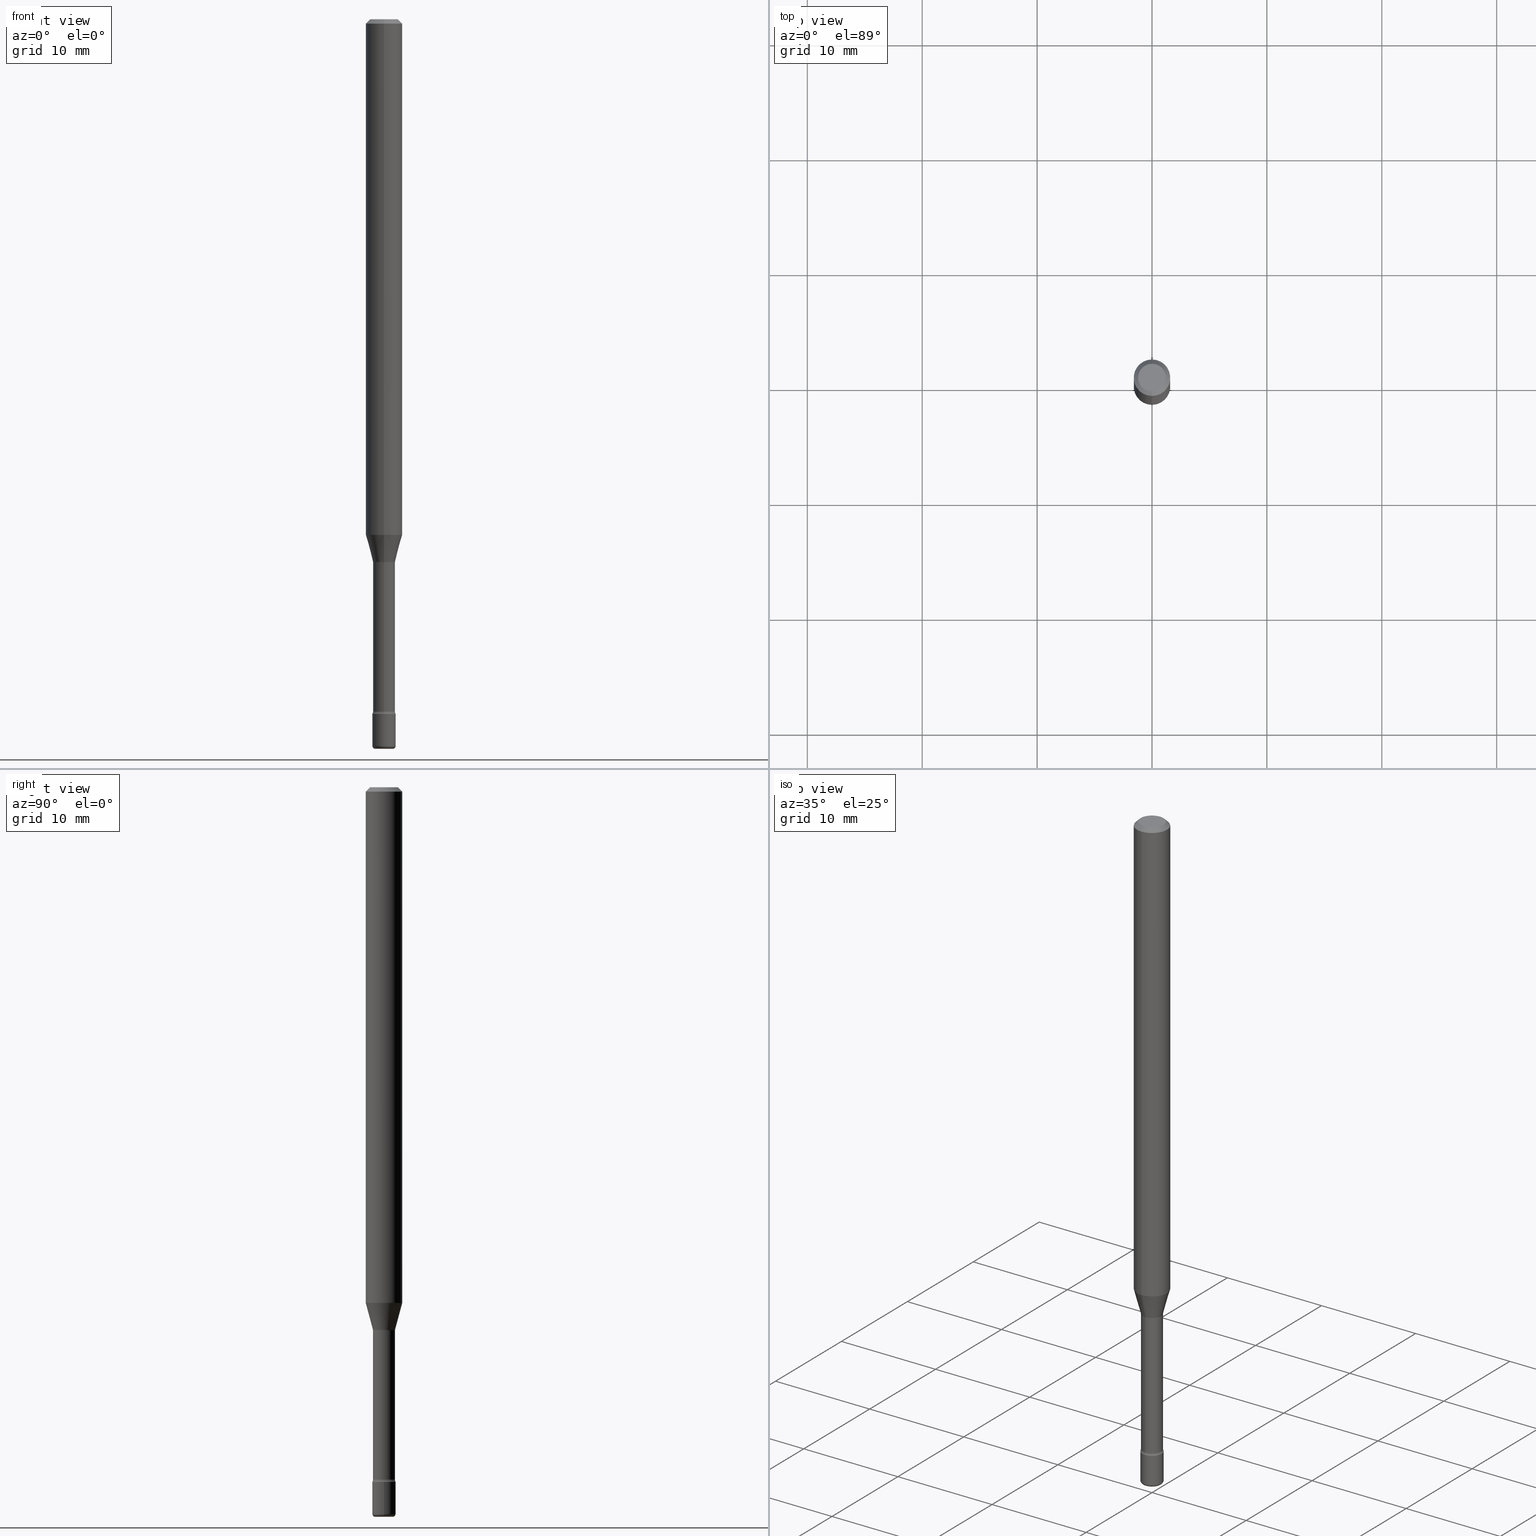
[diagram: canonical four-view strip — front | top / right | iso, engineering-drawing reading convention]
A machine part, canonical four-view strip (front | top / right | iso — engineering-drawing reading convention). The complete STEP part file that produces these views, byte-faithful:
ISO-10303-21;
HEADER;
FILE_DESCRIPTION (( 'STEP AP203' ),
    '1' );
FILE_NAME ('08843.STEP',
    '2024-03-06T20:05:14',
    ( '' ),
    ( '' ),
    'SwSTEP 2.0',
    'SolidWorks 2023',
    '' );
FILE_SCHEMA (( 'CONFIG_CONTROL_DESIGN' ));
ENDSEC;

DATA;
#1 = ORIENTED_EDGE ( 'NONE', *, *, #415, .F. ) ;
#2 = DIRECTION ( 'NONE',  ( -2.445371158952634038E-29, 3.491621175237824120E-15, 1.000000000000000000 ) ) ;
#3 = EDGE_CURVE ( 'NONE', #87, #452, #150, .T. ) ;
#4 = AXIS2_PLACEMENT_3D ( 'NONE', #69, #107, #285 ) ;
#5 = ORIENTED_EDGE ( 'NONE', *, *, #225, .T. ) ;
#6 = AXIS2_PLACEMENT_3D ( 'NONE', #503, #110, #382 ) ;
#7 = CARTESIAN_POINT ( 'NONE',  ( -1.169113584055446105E-44, 1.669184350826100908E-30, 4.780733988912460139E-16 ) ) ;
#8 = CARTESIAN_POINT ( 'NONE',  ( 5.820215758720625190E-29, -8.309725586446686731E-15, -2.379999999999999893 ) ) ;
#9 = DIRECTION ( 'NONE',  ( -2.445468806185136877E-29, 3.491481338843145188E-15, 1.000000000000000000 ) ) ;
#10 = DIRECTION ( 'NONE',  ( -2.445468806185136597E-29, 3.491481338843145583E-15, 1.000000000000000000 ) ) ;
#11 = CIRCLE ( 'NONE', #473, 0.03760000000000000842 ) ;
#12 = DIRECTION ( 'NONE',  ( -2.445468806185136597E-29, 3.491481338843145583E-15, 1.000000000000000000 ) ) ;
#13 = SECURITY_CLASSIFICATION ( '', '', #249 ) ;
#14 = VERTEX_POINT ( 'NONE', #443 ) ;
#15 = CARTESIAN_POINT ( 'NONE',  ( -1.169113584055446105E-44, 1.669184350826100908E-30, 4.780733988912460139E-16 ) ) ;
#16 = ADVANCED_FACE ( 'NONE', ( #483 ), #350, .F. ) ;
#17 = ORIENTED_EDGE ( 'NONE', *, *, #32, .F. ) ;
#18 = CARTESIAN_POINT ( 'NONE',  ( 5.800080981349790489E-29, -8.281640804682186145E-15, -2.371861204020250025 ) ) ;
#19 = AXIS2_PLACEMENT_3D ( 'NONE', #54, #223, #530 ) ;
#20 = TOROIDAL_SURFACE ( 'NONE', #436, 0.02999999999999999889, 0.01000000000000008347 ) ;
#21 = AXIS2_PLACEMENT_3D ( 'NONE', #385, #386, #243 ) ;
#22 = PLANE ( 'NONE',  #426 ) ;
#23 = FACE_OUTER_BOUND ( 'NONE', #162, .T. ) ;
#24 = FACE_OUTER_BOUND ( 'NONE', #343, .T. ) ;
#25 = EDGE_CURVE ( 'NONE', #493, #86, #472, .T. ) ;
#26 = DIRECTION ( 'NONE',  ( 1.000000000000000000, -6.982962677686236734E-15, 0.000000000000000000 ) ) ;
#27 = VERTEX_POINT ( 'NONE', #58 ) ;
#28 = EDGE_CURVE ( 'NONE', #452, #87, #412, .T. ) ;
#29 = CIRCLE ( 'NONE', #304, 0.02999999999999999889 ) ;
#30 = PERSON_AND_ORGANIZATION ( #515, #340 ) ;
#31 = EDGE_LOOP ( 'NONE', ( #370, #232, #257, #569 ) ) ;
#32 = EDGE_CURVE ( 'NONE', #123, #86, #319, .T. ) ;
#33 = LENGTH_MEASURE_WITH_UNIT ( LENGTH_MEASURE( 0.02539999999999999897 ), #334 );
#34 = ORIENTED_EDGE ( 'NONE', *, *, #331, .F. ) ;
#35 = PERSON_AND_ORGANIZATION ( #515, #340 ) ;
#36 = ORIENTED_EDGE ( 'NONE', *, *, #480, .T. ) ;
#37 = CARTESIAN_POINT ( 'NONE',  ( -4.364351673553912750E-16, -0.06250000000000005551, -0.01499999999999981036 ) ) ;
#38 = CC_DESIGN_DATE_AND_TIME_ASSIGNMENT ( #89, #535, ( #13 ) ) ;
#39 = DESIGN_CONTEXT ( 'detailed design', #190, 'design' ) ;
#40 = CALENDAR_DATE ( 2024, 6, 3 ) ;
#41 = AXIS2_PLACEMENT_3D ( 'NONE', #495, #149, #369 ) ;
#42 = LOCAL_TIME ( 15, 5, 14.00000000000000000, #171 ) ;
#43 = ORIENTED_EDGE ( 'NONE', *, *, #474, .F. ) ;
#44 = ADVANCED_FACE ( 'NONE', ( #453 ), #188, .T. ) ;
#45 = CALENDAR_DATE ( 2024, 6, 3 ) ;
#46 = ORIENTED_EDGE ( 'NONE', *, *, #25, .T. ) ;
#47 = CALENDAR_DATE ( 2024, 6, 3 ) ;
#48 = ORIENTED_EDGE ( 'NONE', *, *, #384, .T. ) ;
#49 = DIRECTION ( 'NONE',  ( -1.000000000000000000, 6.982962677686265922E-15, -4.883557194083112340E-29 ) ) ;
#50 = AXIS2_PLACEMENT_3D ( 'NONE', #153, #461, #330 ) ;
#51 = AXIS2_PLACEMENT_3D ( 'NONE', #67, #326, #420 ) ;
#52 = PRODUCT ( '08843', '08843', '', ( #159 ) ) ;
#53 = APPROVAL_STATUS ( 'not_yet_approved' ) ;
#54 = CARTESIAN_POINT ( 'NONE',  ( 4.553219443960964936E-29, -6.501310595667589929E-15, -1.861974787463811065 ) ) ;
#55 = CARTESIAN_POINT ( 'NONE',  ( 0.02999999999999999889, -8.938192227438451682E-15, -2.500000000000000000 ) ) ;
#56 = DIRECTION ( 'NONE',  ( 1.000000000000000000, -6.982962677686259611E-15, 0.000000000000000000 ) ) ;
#57 = DIRECTION ( 'NONE',  ( -2.445371158952634318E-29, 3.491621175237824120E-15, 1.000000000000000000 ) ) ;
#58 = CARTESIAN_POINT ( 'NONE',  ( 3.574424759935243533E-16, 0.03811111260565749198, -1.858092501787273143 ) ) ;
#59 = DIRECTION ( 'NONE',  ( -6.982962677686265133E-15, -1.000000000000000000, 3.491621175237824120E-15 ) ) ;
#60 = DIRECTION ( 'NONE',  ( -2.445468806185136597E-29, 3.491481338843145583E-15, 1.000000000000000000 ) ) ;
#61 = AXIS2_PLACEMENT_3D ( 'NONE', #404, #10, #56 ) ;
#62 = ORIENTED_EDGE ( 'NONE', *, *, #247, .F. ) ;
#63 = CIRCLE ( 'NONE', #185, 0.03760000000000005699 ) ;
#64 = VECTOR ( 'NONE', #296, 39.37007874015748143 ) ;
#65 = CARTESIAN_POINT ( 'NONE',  ( 4.543725814536743959E-29, -6.487755124791067453E-15, -1.858092501787273143 ) ) ;
#66 = DIRECTION ( 'NONE',  ( -2.445371158952634318E-29, 3.491621175237824120E-15, 1.000000000000000000 ) ) ;
#67 = CARTESIAN_POINT ( 'NONE',  ( 5.800312587032241644E-29, -8.281309132162736146E-15, -2.371861204020250025 ) ) ;
#68 = APPROVAL ( #53, 'UNSPECIFIED' ) ;
#69 = CARTESIAN_POINT ( 'NONE',  ( 5.819983358307269654E-29, -8.310058397066021462E-15, -2.379999999999999893 ) ) ;
#70 = ADVANCED_FACE ( 'NONE', ( #181 ), #377, .F. ) ;
#71 = FACE_OUTER_BOUND ( 'NONE', #157, .T. ) ;
#72 = VECTOR ( 'NONE', #9, 39.37007874015748143 ) ;
#73 = DIRECTION ( 'NONE',  ( 6.982962677686265922E-15, 1.000000000000000000, -3.483106191921935554E-15 ) ) ;
#74 = CARTESIAN_POINT ( 'NONE',  ( 4.543725814536743959E-29, -6.487755124791067453E-15, -1.858092501787273143 ) ) ;
#75 = ADVANCED_FACE ( 'NONE', ( #416 ), #282, .T. ) ;
#76 = VERTEX_POINT ( 'NONE', #355 ) ;
#77 = CIRCLE ( 'NONE', #50, 0.06250000000000000000 ) ;
#78 = APPROVAL_DATE_TIME ( #460, #342 ) ;
#79 = DATE_AND_TIME ( #47, #42 ) ;
#80 = PERSON_AND_ORGANIZATION ( #515, #340 ) ;
#81 = ORIENTED_EDGE ( 'NONE', *, *, #266, .F. ) ;
#82 = EDGE_LOOP ( 'NONE', ( #400, #295, #547, #178 ) ) ;
#83 = LINE ( 'NONE', #254, #118 ) ;
#84 = AXIS2_PLACEMENT_3D ( 'NONE', #488, #106, #99 ) ;
#85 = CIRCLE ( 'NONE', #458, 0.01500000000000001853 ) ;
#86 = VERTEX_POINT ( 'NONE', #312 ) ;
#87 = VERTEX_POINT ( 'NONE', #141 ) ;
#88 = CARTESIAN_POINT ( 'NONE',  ( 0.04000000000000004247, -8.973107040826881753E-15, -2.489999999999999769 ) ) ;
#89 = DATE_AND_TIME ( #175, #127 ) ;
#90 = VERTEX_POINT ( 'NONE', #406 ) ;
#91 = CARTESIAN_POINT ( 'NONE',  ( 4.440892098501060035E-16, 0.06249999999999995143, -0.01500000000000024578 ) ) ;
#92 = CIRCLE ( 'NONE', #144, 0.02999999999999999889 ) ;
#93 = LINE ( 'NONE', #267, #378 ) ;
#94 = EDGE_CURVE ( 'NONE', #551, #87, #139, .T. ) ;
#95 = EDGE_CURVE ( 'NONE', #362, #408, #522, .T. ) ;
#96 = ORIENTED_EDGE ( 'NONE', *, *, #25, .F. ) ;
#97 = DIRECTION ( 'NONE',  ( -6.982962677686265922E-15, -1.000000000000000000, 3.491621175237824120E-15 ) ) ;
#98 = CARTESIAN_POINT ( 'NONE',  ( 3.737454790098581624E-16, 0.05259999999999349224, -1.861974787463811509 ) ) ;
#99 = DIRECTION ( 'NONE',  ( -6.982962677686265922E-15, -1.000000000000000000, 3.491621175237824120E-15 ) ) ;
#100 = DIRECTION ( 'NONE',  ( 7.105427357601001859E-15, 1.000000000000000000, 0.000000000000000000 ) ) ;
#101 = CARTESIAN_POINT ( 'NONE',  ( -4.287811248607203282E-16, -0.06250000000000005551, -0.01499999999999981036 ) ) ;
#102 = DIRECTION ( 'NONE',  ( -6.982962677686265922E-15, -1.000000000000000000, 0.000000000000000000 ) ) ;
#103 = AXIS2_PLACEMENT_3D ( 'NONE', #224, #57, #459 ) ;
#104 = FACE_OUTER_BOUND ( 'NONE', #536, .T. ) ;
#105 = EDGE_LOOP ( 'NONE', ( #345, #5, #422, #315 ) ) ;
#106 = DIRECTION ( 'NONE',  ( -2.445371158952634318E-29, 3.491621175237824120E-15, 1.000000000000000000 ) ) ;
#107 = DIRECTION ( 'NONE',  ( -2.445371158952634318E-29, 3.491621175237824120E-15, 1.000000000000000000 ) ) ;
#108 = AXIS2_PLACEMENT_3D ( 'NONE', #556, #379, #545 ) ;
#109 = CARTESIAN_POINT ( 'NONE',  ( 2.793185071075088075E-16, 0.03999999999999169498, -2.380000000000000338 ) ) ;
#110 = DIRECTION ( 'NONE',  ( -2.445371158952634318E-29, 3.491621175237824120E-15, 1.000000000000000000 ) ) ;
#111 = COORDINATED_UNIVERSAL_TIME_OFFSET ( 5, 0, .BEHIND. ) ;
#112 = FACE_OUTER_BOUND ( 'NONE', #481, .T. ) ;
#113 = CARTESIAN_POINT ( 'NONE',  ( 4.321146745378387312E-29, -6.169945786035756987E-15, -1.767071934891535134 ) ) ;
#114 = DATE_TIME_ROLE ( 'creation_date' ) ;
#115 = EDGE_CURVE ( 'NONE', #27, #287, #93, .T. ) ;
#116 = DIRECTION ( 'NONE',  ( -6.982962677686265922E-15, -1.000000000000000000, 4.370956789862821150E-15 ) ) ;
#117 = AXIS2_PLACEMENT_3D ( 'NONE', #65, #193, #367 ) ;
#118 = VECTOR ( 'NONE', #346, 39.37007874015748143 ) ;
#119 = PERSON_AND_ORGANIZATION_ROLE ( 'design_supplier' ) ;
#120 = EDGE_LOOP ( 'NONE', ( #308, #251, #558, #167 ) ) ;
#121 = ORIENTED_EDGE ( 'NONE', *, *, #392, .F. ) ;
#122 = LINE ( 'NONE', #430, #231 ) ;
#123 = VERTEX_POINT ( 'NONE', #450 ) ;
#124 = FACE_OUTER_BOUND ( 'NONE', #169, .T. ) ;
#125 = AXIS2_PLACEMENT_3D ( 'NONE', #363, #541, #97 ) ;
#126 = CIRCLE ( 'NONE', #498, 0.01500000000000001853 ) ;
#127 = LOCAL_TIME ( 15, 5, 14.00000000000000000, #441 ) ;
#128 = EDGE_LOOP ( 'NONE', ( #1, #227, #419, #306 ) ) ;
#129 = CARTESIAN_POINT ( 'NONE',  ( 4.364351673553919652E-16, 0.06249999999999995143, -0.01500000000000024578 ) ) ;
#130 = ORIENTED_EDGE ( 'NONE', *, *, #509, .F. ) ;
#131 = EDGE_CURVE ( 'NONE', #90, #123, #283, .T. ) ;
#132 = DIRECTION ( 'NONE',  ( -6.982962677686265922E-15, -1.000000000000000000, 3.491621175237824120E-15 ) ) ;
#133 = DIRECTION ( 'NONE',  ( -2.445468806185136597E-29, 3.491481338843145583E-15, 1.000000000000000000 ) ) ;
#134 = AXIS2_PLACEMENT_3D ( 'NONE', #211, #158, #423 ) ;
#135 = CC_DESIGN_APPROVAL ( #342, ( #514 ) ) ;
#136 = CARTESIAN_POINT ( 'NONE',  ( 3.668056738428958326E-31, -5.237431762856745967E-17, -0.01500000000000002720 ) ) ;
#137 = ADVANCED_FACE ( 'NONE', ( #276 ), #523, .T. ) ;
#138 = VERTEX_POINT ( 'NONE', #506 ) ;
#139 = LINE ( 'NONE', #313, #72 ) ;
#140 = DIRECTION ( 'NONE',  ( -6.982962677686265133E-15, -1.000000000000000000, 3.491621175237824120E-15 ) ) ;
#141 = CARTESIAN_POINT ( 'NONE',  ( -0.04000000000000000083, -8.217539965779019686E-15, -2.379999999999999893 ) ) ;
#142 = DIRECTION ( 'NONE',  ( -6.982962677686265922E-15, -1.000000000000000000, 3.491621175237823726E-15 ) ) ;
#143 = AXIS2_PLACEMENT_3D ( 'NONE', #454, #451, #59 ) ;
#144 = AXIS2_PLACEMENT_3D ( 'NONE', #546, #421, #26 ) ;
#145 = CIRCLE ( 'NONE', #390, 0.01000000000000008521 ) ;
#146 = DIRECTION ( 'NONE',  ( 1.000000000000000000, -6.982962677686236734E-15, 0.000000000000000000 ) ) ;
#147 = CARTESIAN_POINT ( 'NONE',  ( 0.04000000000000000083, -8.589044093554136769E-15, -2.379999999999999893 ) ) ;
#148 = CC_DESIGN_PERSON_AND_ORGANIZATION_ASSIGNMENT ( #248, #208, ( #514 ) ) ;
#149 = DIRECTION ( 'NONE',  ( -2.445371158952634318E-29, 3.491621175237824120E-15, 1.000000000000000000 ) ) ;
#150 = CIRCLE ( 'NONE', #244, 0.04000000000000000083 ) ;
#151 = ORIENTED_EDGE ( 'NONE', *, *, #438, .F. ) ;
#152 = AXIS2_PLACEMENT_3D ( 'NONE', #184, #12, #192 ) ;
#153 = CARTESIAN_POINT ( 'NONE',  ( 3.668056738428958326E-31, -5.237431762856745967E-17, -0.01500000000000002720 ) ) ;
#154 = LOCAL_TIME ( 15, 5, 14.00000000000000000, #471 ) ;
#155 = FACE_OUTER_BOUND ( 'NONE', #261, .T. ) ;
#156 = ADVANCED_FACE ( 'NONE', ( #71 ), #374, .T. ) ;
#157 = EDGE_LOOP ( 'NONE', ( #204, #435 ) ) ;
#158 = DIRECTION ( 'NONE',  ( 1.000000000000000000, -7.105427357601001070E-15, 4.926317221044013768E-29 ) ) ;
#159 = MECHANICAL_CONTEXT ( 'NONE', #560, 'mechanical' ) ;
#160 = CC_DESIGN_PERSON_AND_ORGANIZATION_ASSIGNMENT ( #35, #563, ( #13 ) ) ;
#161 = PERSON_AND_ORGANIZATION_ROLE ( 'creator' ) ;
#162 = EDGE_LOOP ( 'NONE', ( #34, #447 ) ) ;
#163 = DIRECTION ( 'NONE',  ( -6.982962677686267499E-15, -1.000000000000000000, 0.000000000000000000 ) ) ;
#164 = CIRCLE ( 'NONE', #103, 0.03811111260566397985 ) ;
#165 = AXIS2_PLACEMENT_3D ( 'NONE', #238, #288, #336 ) ;
#166 = MANIFOLD_SOLID_BREP ( 'Body-Move/Copy2[1]', #263 ) ;
#167 = ORIENTED_EDGE ( 'NONE', *, *, #549, .F. ) ;
#168 = UNCERTAINTY_MEASURE_WITH_UNIT (LENGTH_MEASURE( 1.000000000000000082E-05 ), #250, 'distance_accuracy_value', 'NONE');
#169 = EDGE_LOOP ( 'NONE', ( #81, #324 ) ) ;
#170 = CC_DESIGN_DATE_AND_TIME_ASSIGNMENT ( #572, #114, ( #518 ) ) ;
#171 = COORDINATED_UNIVERSAL_TIME_OFFSET ( 5, 0, .BEHIND. ) ;
#172 = PERSON_AND_ORGANIZATION ( #515, #340 ) ;
#173 = ORIENTED_EDGE ( 'NONE', *, *, #94, .T. ) ;
#174 = CARTESIAN_POINT ( 'NONE',  ( 0.04000000000000000083, -2.793185071074506290E-16, 1.950470710318374387E-30 ) ) ;
#175 = CALENDAR_DATE ( 2024, 6, 3 ) ;
#176 = VECTOR ( 'NONE', #347, 39.37007874015748143 ) ;
#177 = TOROIDAL_SURFACE ( 'NONE', #21, 0.05260000000000002174, 0.01499999999999996822 ) ;
#178 = ORIENTED_EDGE ( 'NONE', *, *, #225, .F. ) ;
#179 = CARTESIAN_POINT ( 'NONE',  ( 4.553219443960964936E-29, -6.501310595667589929E-15, -1.861974787463811065 ) ) ;
#180 = MANIFOLD_SOLID_BREP ( 'Body-Move/Copy2[2]', #230 ) ;
#181 = FACE_OUTER_BOUND ( 'NONE', #245, .T. ) ;
#182 = PRODUCT_DEFINITION_SHAPE ( 'NONE', 'NONE',  #518 ) ;
#183 = VERTEX_POINT ( 'NONE', #202 ) ;
#184 = CARTESIAN_POINT ( 'NONE',  ( 0.000000000000000000, 0.000000000000000000, 0.000000000000000000 ) ) ;
#185 = AXIS2_PLACEMENT_3D ( 'NONE', #255, #527, #219 ) ;
#186 = VECTOR ( 'NONE', #307, 39.37007874015748143 ) ;
#187 = ORIENTED_EDGE ( 'NONE', *, *, #532, .T. ) ;
#188 = CYLINDRICAL_SURFACE ( 'NONE', #337, 0.06250000000000000000 ) ;
#189 = DIRECTION ( 'NONE',  ( 7.105427357601001859E-15, 1.000000000000000000, -3.491481338843145583E-15 ) ) ;
#190 = APPLICATION_CONTEXT ( 'configuration controlled 3d designs of mechanical parts and assemblies' ) ;
#191 = DIRECTION ( 'NONE',  ( 6.982962677686265922E-15, 1.000000000000000000, -3.483106191921935554E-15 ) ) ;
#192 = DIRECTION ( 'NONE',  ( 1.000000000000000000, -6.982962677686265922E-15, 4.876176775795935793E-29 ) ) ;
#193 = DIRECTION ( 'NONE',  ( -2.445371158952634318E-29, 3.491621175237824120E-15, 1.000000000000000000 ) ) ;
#194 = DIMENSIONAL_EXPONENTS ( 1.000000000000000000, 0.000000000000000000, 0.000000000000000000, 0.000000000000000000, 0.000000000000000000, 0.000000000000000000, 0.000000000000000000 ) ;
#195 = CARTESIAN_POINT ( 'NONE',  ( -0.04000000000000004247, -8.409571439415391389E-15, -2.489999999999999769 ) ) ;
#196 = AXIS2_PLACEMENT_3D ( 'NONE', #529, #277, #132 ) ;
#197 =( GEOMETRIC_REPRESENTATION_CONTEXT ( 3 ) GLOBAL_UNCERTAINTY_ASSIGNED_CONTEXT ( ( #168 ) ) GLOBAL_UNIT_ASSIGNED_CONTEXT ( ( #250, #513, #293 ) ) REPRESENTATION_CONTEXT ( 'NONE', 'WORKASPACE' ) );
#198 = DIRECTION ( 'NONE',  ( -2.445468806185136597E-29, 3.491481338843145583E-15, 1.000000000000000000 ) ) ;
#199 = ORIENTED_EDGE ( 'NONE', *, *, #310, .F. ) ;
#200 = CC_DESIGN_PERSON_AND_ORGANIZATION_ASSIGNMENT ( #511, #119, ( #514 ) ) ;
#201 = ADVANCED_FACE ( 'NONE', ( #24 ), #554, .T. ) ;
#202 = CARTESIAN_POINT ( 'NONE',  ( -0.02999999999999999889, -8.462555982897612254E-15, -2.500000000000000000 ) ) ;
#203 = ORIENTED_EDGE ( 'NONE', *, *, #310, .T. ) ;
#204 = ORIENTED_EDGE ( 'NONE', *, *, #28, .T. ) ;
#205 = AXIS2_PLACEMENT_3D ( 'NONE', #401, #531, #316 ) ;
#206 = AXIS2_PLACEMENT_3D ( 'NONE', #320, #500, #234 ) ;
#207 = DIRECTION ( 'NONE',  ( 1.000000000000000000, 0.000000000000000000, 0.000000000000000000 ) ) ;
#208 = PERSON_AND_ORGANIZATION_ROLE ( 'creator' ) ;
#209 = ADVANCED_FACE ( 'NONE', ( #112 ), #284, .T. ) ;
#210 = EDGE_LOOP ( 'NONE', ( #216, #371, #516, #394 ) ) ;
#211 = CARTESIAN_POINT ( 'NONE',  ( 3.737454790098707842E-16, 0.05259999999999174364, -2.371861204020250025 ) ) ;
#212 = APPROVAL_DATE_TIME ( #429, #217 ) ;
#213 = ORIENTED_EDGE ( 'NONE', *, *, #335, .F. ) ;
#214 = DIRECTION ( 'NONE',  ( -6.982962677686266711E-15, -1.000000000000000000, 0.000000000000000000 ) ) ;
#215 = DIRECTION ( 'NONE',  ( 2.445371158952634038E-29, -3.491621175237824120E-15, -1.000000000000000000 ) ) ;
#216 = ORIENTED_EDGE ( 'NONE', *, *, #474, .T. ) ;
#217 = APPROVAL ( #333, 'UNSPECIFIED' ) ;
#218 = EDGE_LOOP ( 'NONE', ( #271, #544, #62, #479 ) ) ;
#219 = DIRECTION ( 'NONE',  ( -6.982962677686265922E-15, -1.000000000000000000, 0.000000000000000000 ) ) ;
#220 = ORIENTED_EDGE ( 'NONE', *, *, #356, .F. ) ;
#221 = AXIS2_PLACEMENT_3D ( 'NONE', #344, #297, #303 ) ;
#222 = CC_DESIGN_APPROVAL ( #68, ( #13 ) ) ;
#223 = DIRECTION ( 'NONE',  ( -2.445371158952634318E-29, 3.491621175237824120E-15, 1.000000000000000000 ) ) ;
#224 = CARTESIAN_POINT ( 'NONE',  ( 4.543725814536743959E-29, -6.487755124791067453E-15, -1.858092501787273143 ) ) ;
#225 = EDGE_CURVE ( 'NONE', #287, #138, #256, .T. ) ;
#226 = ORIENTED_EDGE ( 'NONE', *, *, #384, .F. ) ;
#227 = ORIENTED_EDGE ( 'NONE', *, *, #509, .T. ) ;
#228 = ADVANCED_FACE ( 'NONE', ( #23 ), #501, .F. ) ;
#229 = FACE_OUTER_BOUND ( 'NONE', #332, .T. ) ;
#230 = CLOSED_SHELL ( 'NONE', ( #70, #209, #566, #75, #393, #486, #137, #44, #201, #292, #228, #540, #431, #16 ) ) ;
#231 = VECTOR ( 'NONE', #433, 39.37007874015748854 ) ;
#232 = ORIENTED_EDGE ( 'NONE', *, *, #131, .F. ) ;
#233 = DIRECTION ( 'NONE',  ( -2.445371158952634318E-29, 3.491621175237824120E-15, 1.000000000000000000 ) ) ;
#234 = DIRECTION ( 'NONE',  ( -6.982962677686266711E-15, -1.000000000000000000, 0.000000000000000000 ) ) ;
#235 = CARTESIAN_POINT ( 'NONE',  ( 4.440892098501054119E-16, 0.06249999999999378969, -1.767071934891535356 ) ) ;
#236 = VECTOR ( 'NONE', #448, 39.37007874015748143 ) ;
#237 = CARTESIAN_POINT ( 'NONE',  ( 6.113672015462842613E-29, -8.728703347107864943E-15, -2.500000000000000000 ) ) ;
#238 = CARTESIAN_POINT ( 'NONE',  ( 6.089217327400989947E-29, -8.693788533719431716E-15, -2.489999999999999769 ) ) ;
#239 = EDGE_CURVE ( 'NONE', #381, #300, #275, .T. ) ;
#240 = DIRECTION ( 'NONE',  ( -2.445371158952634318E-29, 3.491621175237824120E-15, 1.000000000000000000 ) ) ;
#241 = DIRECTION ( 'NONE',  ( 1.000000000000000000, -6.982962677686259611E-15, 0.000000000000000000 ) ) ;
#242 = APPROVAL_STATUS ( 'not_yet_approved' ) ;
#243 = DIRECTION ( 'NONE',  ( -6.982962677686265922E-15, -1.000000000000000000, 3.491621175237824120E-15 ) ) ;
#244 = AXIS2_PLACEMENT_3D ( 'NONE', #8, #133, #409 ) ;
#245 = EDGE_LOOP ( 'NONE', ( #397, #294, #48, #220 ) ) ;
#246 = AXIS2_PLACEMENT_3D ( 'NONE', #279, #328, #372 ) ;
#247 = EDGE_CURVE ( 'NONE', #349, #551, #368, .T. ) ;
#248 = PERSON_AND_ORGANIZATION ( #515, #340 ) ;
#249 = SECURITY_CLASSIFICATION_LEVEL ( 'unclassified' ) ;
#250 =( CONVERSION_BASED_UNIT ( 'INCH', #33 ) LENGTH_UNIT ( ) NAMED_UNIT ( #194 ) );
#251 = ORIENTED_EDGE ( 'NONE', *, *, #449, .T. ) ;
#252 = CARTESIAN_POINT ( 'NONE',  ( 5.819983358307269654E-29, -8.310058397066021462E-15, -2.379999999999999893 ) ) ;
#253 = ORIENTED_EDGE ( 'NONE', *, *, #131, .T. ) ;
#254 = CARTESIAN_POINT ( 'NONE',  ( -2.625593966810038003E-16, -0.03760000000000002923, 6.093583550801884071E-16 ) ) ;
#255 = CARTESIAN_POINT ( 'NONE',  ( 5.800080981349790489E-29, -8.281640804682186145E-15, -2.371861204020250025 ) ) ;
#256 = CIRCLE ( 'NONE', #246, 0.06250000000000000000 ) ;
#257 = ORIENTED_EDGE ( 'NONE', *, *, #549, .T. ) ;
#258 = CARTESIAN_POINT ( 'NONE',  ( 4.440892098500625669E-16, 0.06250000000000000000, 2.598470754388820311E-16 ) ) ;
#259 = DIRECTION ( 'NONE',  ( -2.445371158952634318E-29, 3.491621175237824120E-15, 1.000000000000000000 ) ) ;
#260 = ORIENTED_EDGE ( 'NONE', *, *, #539, .T. ) ;
#261 = EDGE_LOOP ( 'NONE', ( #517, #339 ) ) ;
#262 = CARTESIAN_POINT ( 'NONE',  ( -0.02999999999999999889, -8.480625712991401471E-15, -2.489999999999999769 ) ) ;
#263 = CLOSED_SHELL ( 'NONE', ( #395, #496, #156, #375, #553, #376 ) ) ;
#264 = AXIS2_PLACEMENT_3D ( 'NONE', #18, #365, #102 ) ;
#265 = LOCAL_TIME ( 15, 5, 14.00000000000000000, #396 ) ;
#266 = EDGE_CURVE ( 'NONE', #437, #183, #92, .T. ) ;
#267 = CARTESIAN_POINT ( 'NONE',  ( 2.707957421369426539E-16, 0.03811111260565749198, -1.858092501787273143 ) ) ;
#268 = DIRECTION ( 'NONE',  ( -6.982962677686265922E-15, -1.000000000000000000, 3.491621175237823726E-15 ) ) ;
#269 = CYLINDRICAL_SURFACE ( 'NONE', #152, 0.04000000000000000083 ) ;
#270 = CC_DESIGN_PERSON_AND_ORGANIZATION_ASSIGNMENT ( #172, #161, ( #518 ) ) ;
#271 = ORIENTED_EDGE ( 'NONE', *, *, #266, .T. ) ;
#272 = DIRECTION ( 'NONE',  ( -2.445371158952634318E-29, 3.491621175237824120E-15, 1.000000000000000000 ) ) ;
#273 = CARTESIAN_POINT ( 'NONE',  ( 6.618019183240949293E-46, -9.462883955146153343E-32, -2.708254496839223107E-17 ) ) ;
#274 = AXIS2_PLACEMENT_3D ( 'NONE', #311, #272, #487 ) ;
#275 = CIRCLE ( 'NONE', #4, 0.04000000000000000083 ) ;
#276 = FACE_OUTER_BOUND ( 'NONE', #82, .T. ) ;
#277 = DIRECTION ( 'NONE',  ( -2.445371158952634318E-29, 3.491621175237824120E-15, 1.000000000000000000 ) ) ;
#278 = ORIENTED_EDGE ( 'NONE', *, *, #348, .T. ) ;
#279 = CARTESIAN_POINT ( 'NONE',  ( 4.321146745378387312E-29, -6.169945786035756987E-15, -1.767071934891535134 ) ) ;
#280 = CARTESIAN_POINT ( 'NONE',  ( 6.089217327400989947E-29, -8.693788533719431716E-15, -2.489999999999999769 ) ) ;
#281 = EDGE_CURVE ( 'NONE', #183, #437, #29, .T. ) ;
#282 = CONICAL_SURFACE ( 'NONE', #425, 0.06250000000000000000, 0.7853981633974480570 ) ;
#283 = CIRCLE ( 'NONE', #264, 0.03760000000000005699 ) ;
#284 = CYLINDRICAL_SURFACE ( 'NONE', #41, 0.03760000000000002923 ) ;
#285 = DIRECTION ( 'NONE',  ( -6.982962677686265922E-15, -1.000000000000000000, 6.829619984160658243E-15 ) ) ;
#286 = CALENDAR_DATE ( 2024, 6, 3 ) ;
#287 = VERTEX_POINT ( 'NONE', #235 ) ;
#288 = DIRECTION ( 'NONE',  ( -2.445468806185136597E-29, 3.491481338843145583E-15, 1.000000000000000000 ) ) ;
#289 = AXIS2_PLACEMENT_3D ( 'NONE', #74, #240, #214 ) ;
#290 = AXIS2_PLACEMENT_3D ( 'NONE', #291, #60, #398 ) ;
#291 = CARTESIAN_POINT ( 'NONE',  ( 6.089217327400989947E-29, -8.693788533719431716E-15, -2.489999999999999769 ) ) ;
#292 = ADVANCED_FACE ( 'NONE', ( #155 ), #22, .F. ) ;
#293 =( NAMED_UNIT ( * ) SI_UNIT ( $, .STERADIAN. ) SOLID_ANGLE_UNIT ( ) );
#294 = ORIENTED_EDGE ( 'NONE', *, *, #383, .T. ) ;
#295 = ORIENTED_EDGE ( 'NONE', *, *, #440, .T. ) ;
#296 = DIRECTION ( 'NONE',  ( -4.851104656540962697E-15, -0.7071067811865497932, -0.7071067811865452413 ) ) ;
#297 = DIRECTION ( 'NONE',  ( 2.438088387897960049E-29, -3.491481338843145188E-15, -1.000000000000000000 ) ) ;
#298 = CARTESIAN_POINT ( 'NONE',  ( -2.793185071073924012E-16, -0.04000000000000829975, -2.379999999999999893 ) ) ;
#299 = PERSON_AND_ORGANIZATION ( #515, #340 ) ;
#300 = VERTEX_POINT ( 'NONE', #298 ) ;
#301 = CARTESIAN_POINT ( 'NONE',  ( 0.02999999999999999889, -8.903277414050018455E-15, -2.489999999999999769 ) ) ;
#302 = VECTOR ( 'NONE', #490, 39.37007874015748143 ) ;
#303 = DIRECTION ( 'NONE',  ( -1.000000000000000000, 6.982962677686265922E-15, -4.876176775795935793E-29 ) ) ;
#304 = AXIS2_PLACEMENT_3D ( 'NONE', #237, #198, #146 ) ;
#305 = CIRCLE ( 'NONE', #290, 0.04000000000000000083 ) ;
#306 = ORIENTED_EDGE ( 'NONE', *, *, #539, .F. ) ;
#307 = DIRECTION ( 'NONE',  ( 4.937700262164546464E-15, 0.7071067811865449082, -0.7071067811865501263 ) ) ;
#308 = ORIENTED_EDGE ( 'NONE', *, *, #348, .F. ) ;
#309 = CARTESIAN_POINT ( 'NONE',  ( -4.364351673553916201E-16, -0.06250000000000000000, 6.962997223436100461E-16 ) ) ;
#310 = EDGE_CURVE ( 'NONE', #349, #452, #478, .T. ) ;
#311 = CARTESIAN_POINT ( 'NONE',  ( 3.668056738428958326E-31, -5.237431762856745967E-17, -0.01500000000000002720 ) ) ;
#312 = CARTESIAN_POINT ( 'NONE',  ( 2.671640686458558589E-16, 0.03759999999999350667, -1.861974787463811065 ) ) ;
#313 = CARTESIAN_POINT ( 'NONE',  ( -0.04000000000000000083, 2.842170943040400803E-16, -1.967574036101962509E-30 ) ) ;
#314 = CARTESIAN_POINT ( 'NONE',  ( 6.089217327400989947E-29, -8.693788533719431716E-15, -2.489999999999999769 ) ) ;
#315 = ORIENTED_EDGE ( 'NONE', *, *, #480, .F. ) ;
#316 = DIRECTION ( 'NONE',  ( 1.000000000000000000, -6.982962677686265922E-15, 4.876176775795935793E-29 ) ) ;
#317 = AXIS2_PLACEMENT_3D ( 'NONE', #113, #552, #116 ) ;
#318 = CONICAL_SURFACE ( 'NONE', #6, 0.03811111260566397985, 0.2617993877991495744 ) ;
#319 = LINE ( 'NONE', #357, #302 ) ;
#320 = CARTESIAN_POINT ( 'NONE',  ( -3.673038368462397802E-16, -0.05260000000000830678, -2.371861204020249581 ) ) ;
#321 = DIRECTION ( 'NONE',  ( -2.445371158952634038E-29, 3.491621175237824120E-15, 1.000000000000000000 ) ) ;
#322 = FACE_OUTER_BOUND ( 'NONE', #120, .T. ) ;
#323 = CARTESIAN_POINT ( 'NONE',  ( 3.668056738428958326E-31, -5.237431762856745967E-17, -0.01500000000000002720 ) ) ;
#324 = ORIENTED_EDGE ( 'NONE', *, *, #281, .F. ) ;
#325 = CARTESIAN_POINT ( 'NONE',  ( -2.661284769304047342E-16, -0.03811111260567047465, -1.858092501787273143 ) ) ;
#326 = DIRECTION ( 'NONE',  ( -2.445371158952634318E-29, 3.491621175237824120E-15, 1.000000000000000000 ) ) ;
#327 = AXIS2_PLACEMENT_3D ( 'NONE', #323, #550, #73 ) ;
#328 = DIRECTION ( 'NONE',  ( -2.445371158952634318E-29, 3.491621175237824120E-15, 1.000000000000000000 ) ) ;
#329 = TOROIDAL_SURFACE ( 'NONE', #51, 0.05260000000000002174, 0.01499999999999996822 ) ;
#330 = DIRECTION ( 'NONE',  ( -6.982962677686265922E-15, -1.000000000000000000, 3.483106191921935554E-15 ) ) ;
#331 = EDGE_CURVE ( 'NONE', #300, #381, #417, .T. ) ;
#332 = EDGE_LOOP ( 'NONE', ( #507, #173, #508, #199 ) ) ;
#333 = APPROVAL_STATUS ( 'not_yet_approved' ) ;
#334 =( LENGTH_UNIT ( ) NAMED_UNIT ( * ) SI_UNIT ( $, .METRE. ) );
#335 = EDGE_CURVE ( 'NONE', #439, #138, #122, .T. ) ;
#336 = DIRECTION ( 'NONE',  ( 1.000000000000000000, -6.982962677686245411E-15, 4.883557194083105614E-29 ) ) ;
#337 = AXIS2_PLACEMENT_3D ( 'NONE', #15, #233, #268 ) ;
#338 = AXIS2_PLACEMENT_3D ( 'NONE', #109, #321, #456 ) ;
#339 = ORIENTED_EDGE ( 'NONE', *, *, #415, .T. ) ;
#340 = ORGANIZATION ( 'UNSPECIFIED', 'UNSPECIFIED', '' ) ;
#341 = APPROVAL_ROLE ( '' ) ;
#342 = APPROVAL ( #242, 'UNSPECIFIED' ) ;
#343 = EDGE_LOOP ( 'NONE', ( #130, #121, #260, #36 ) ) ;
#344 = CARTESIAN_POINT ( 'NONE',  ( 2.094888803306491331E-16, 0.02999999999999126976, -2.500000000000000000 ) ) ;
#345 = ORIENTED_EDGE ( 'NONE', *, *, #534, .F. ) ;
#346 = DIRECTION ( 'NONE',  ( -2.445371158952634038E-29, 3.491621175237824120E-15, 1.000000000000000000 ) ) ;
#347 = DIRECTION ( 'NONE',  ( -2.445468806185136877E-29, 3.491481338843145188E-15, 1.000000000000000000 ) ) ;
#348 = EDGE_CURVE ( 'NONE', #123, #90, #63, .T. ) ;
#349 = VERTEX_POINT ( 'NONE', #88 ) ;
#350 = TOROIDAL_SURFACE ( 'NONE', #84, 0.05260000000000000092, 0.01500000000000002373 ) ;
#351 = CIRCLE ( 'NONE', #360, 0.01000000000000008521 ) ;
#352 = ORIENTED_EDGE ( 'NONE', *, *, #94, .F. ) ;
#353 = DIRECTION ( 'NONE',  ( -6.982962677686266711E-15, -1.000000000000000000, 3.491481338843145583E-15 ) ) ;
#354 = CYLINDRICAL_SURFACE ( 'NONE', #196, 0.03760000000000002923 ) ;
#355 = CARTESIAN_POINT ( 'NONE',  ( 3.840629472727447874E-16, 0.04750000000000000749, -1.929345507921888929E-16 ) ) ;
#356 = EDGE_CURVE ( 'NONE', #439, #493, #85, .T. ) ;
#357 = CARTESIAN_POINT ( 'NONE',  ( 2.671640686457978776E-16, 0.03760000000000002923, 3.467884427023037687E-16 ) ) ;
#358 = DIRECTION ( 'NONE',  ( -6.982962677686265922E-15, -1.000000000000000000, 0.000000000000000000 ) ) ;
#359 = CC_DESIGN_PERSON_AND_ORGANIZATION_ASSIGNMENT ( #30, #505, ( #52 ) ) ;
#360 = AXIS2_PLACEMENT_3D ( 'NONE', #262, #189, #405 ) ;
#361 = CIRCLE ( 'NONE', #206, 0.01499999999999996822 ) ;
#362 = VERTEX_POINT ( 'NONE', #37 ) ;
#363 = CARTESIAN_POINT ( 'NONE',  ( 4.553401260645949734E-29, -6.501050223826328957E-15, -1.861974787463811065 ) ) ;
#364 = CARTESIAN_POINT ( 'NONE',  ( 2.842170943040980615E-16, 0.03999999999999167416, -2.380000000000000338 ) ) ;
#365 = DIRECTION ( 'NONE',  ( -2.445371158952634318E-29, 3.491621175237824120E-15, 1.000000000000000000 ) ) ;
#366 = DIRECTION ( 'NONE',  ( 1.000000000000000000, -7.105427357601001070E-15, 4.926317221044013768E-29 ) ) ;
#367 = DIRECTION ( 'NONE',  ( -6.982962677686266711E-15, -1.000000000000000000, 0.000000000000000000 ) ) ;
#368 = CIRCLE ( 'NONE', #413, 0.04000000000000000083 ) ;
#369 = DIRECTION ( 'NONE',  ( -6.982962677686265922E-15, -1.000000000000000000, 3.491621175237824120E-15 ) ) ;
#370 = ORIENTED_EDGE ( 'NONE', *, *, #449, .F. ) ;
#371 = ORIENTED_EDGE ( 'NONE', *, *, #534, .T. ) ;
#372 = DIRECTION ( 'NONE',  ( -6.982962677686265922E-15, -1.000000000000000000, 4.370956789862821150E-15 ) ) ;
#373 = ORIENTED_EDGE ( 'NONE', *, *, #32, .T. ) ;
#374 = PLANE ( 'NONE',  #108 ) ;
#375 = ADVANCED_FACE ( 'NONE', ( #124 ), #399, .T. ) ;
#376 = ADVANCED_FACE ( 'NONE', ( #477 ), #269, .T. ) ;
#377 = TOROIDAL_SURFACE ( 'NONE', #125, 0.05260000000000000092, 0.01500000000000002373 ) ;
#378 = VECTOR ( 'NONE', #533, 39.37007874015748854 ) ;
#379 = DIRECTION ( 'NONE',  ( -2.438088387897960049E-29, 3.491481338843145188E-15, 1.000000000000000000 ) ) ;
#380 = APPROVAL_PERSON_ORGANIZATION ( #80, #217, #341 ) ;
#381 = VERTEX_POINT ( 'NONE', #364 ) ;
#382 = DIRECTION ( 'NONE',  ( -6.982962677686266711E-15, -1.000000000000000000, 0.000000000000000000 ) ) ;
#383 = EDGE_CURVE ( 'NONE', #27, #86, #126, .T. ) ;
#384 = EDGE_CURVE ( 'NONE', #86, #493, #11, .T. ) ;
#385 = CARTESIAN_POINT ( 'NONE',  ( 5.800312587032241644E-29, -8.281309132162736146E-15, -2.371861204020250025 ) ) ;
#386 = DIRECTION ( 'NONE',  ( -2.445371158952634318E-29, 3.491621175237824120E-15, 1.000000000000000000 ) ) ;
#387 = EDGE_LOOP ( 'NONE', ( #389, #469, #475, #561 ) ) ;
#388 = AXIS2_PLACEMENT_3D ( 'NONE', #7, #66, #142 ) ;
#389 = ORIENTED_EDGE ( 'NONE', *, *, #411, .F. ) ;
#390 = AXIS2_PLACEMENT_3D ( 'NONE', #301, #353, #470 ) ;
#391 = DIRECTION ( 'NONE',  ( -2.445468806185136597E-29, 3.491481338843145583E-15, 1.000000000000000000 ) ) ;
#392 = EDGE_CURVE ( 'NONE', #76, #14, #444, .T. ) ;
#393 = ADVANCED_FACE ( 'NONE', ( #542 ), #482, .T. ) ;
#394 = ORIENTED_EDGE ( 'NONE', *, *, #403, .F. ) ;
#395 = ADVANCED_FACE ( 'NONE', ( #229 ), #445, .T. ) ;
#396 = COORDINATED_UNIVERSAL_TIME_OFFSET ( 5, 0, .BEHIND. ) ;
#397 = ORIENTED_EDGE ( 'NONE', *, *, #440, .F. ) ;
#398 = DIRECTION ( 'NONE',  ( 1.000000000000000000, -6.982962677686259611E-15, 0.000000000000000000 ) ) ;
#399 = PLANE ( 'NONE',  #221 ) ;
#400 = ORIENTED_EDGE ( 'NONE', *, *, #115, .F. ) ;
#401 = CARTESIAN_POINT ( 'NONE',  ( 0.000000000000000000, 0.000000000000000000, 0.000000000000000000 ) ) ;
#402 = CC_DESIGN_APPROVAL ( #217, ( #518 ) ) ;
#403 = EDGE_CURVE ( 'NONE', #138, #362, #410, .T. ) ;
#404 = CARTESIAN_POINT ( 'NONE',  ( 5.820215758720625190E-29, -8.309725586446686731E-15, -2.379999999999999893 ) ) ;
#405 = DIRECTION ( 'NONE',  ( -1.000000000000000000, 7.105427357600962416E-15, 0.000000000000000000 ) ) ;
#406 = CARTESIAN_POINT ( 'NONE',  ( -2.625593966809460162E-16, -0.03760000000000833509, -2.371861204020250025 ) ) ;
#407 = PRODUCT_RELATED_PRODUCT_CATEGORY ( 'detail', '', ( #52 ) ) ;
#408 = VERTEX_POINT ( 'NONE', #91 ) ;
#409 = DIRECTION ( 'NONE',  ( 1.000000000000000000, -6.982962677686259611E-15, 0.000000000000000000 ) ) ;
#410 = LINE ( 'NONE', #309, #236 ) ;
#411 = EDGE_CURVE ( 'NONE', #183, #551, #351, .T. ) ;
#412 = CIRCLE ( 'NONE', #61, 0.04000000000000000083 ) ;
#413 = AXIS2_PLACEMENT_3D ( 'NONE', #280, #457, #241 ) ;
#414 = EDGE_LOOP ( 'NONE', ( #520, #528, #43, #213 ) ) ;
#415 = EDGE_CURVE ( 'NONE', #14, #76, #564, .T. ) ;
#416 = FACE_OUTER_BOUND ( 'NONE', #128, .T. ) ;
#417 = CIRCLE ( 'NONE', #463, 0.04000000000000000083 ) ;
#418 = TOROIDAL_SURFACE ( 'NONE', #165, 0.02999999999999999889, 0.01000000000000008347 ) ;
#419 = ORIENTED_EDGE ( 'NONE', *, *, #95, .T. ) ;
#420 = DIRECTION ( 'NONE',  ( -6.982962677686265922E-15, -1.000000000000000000, 3.491621175237824120E-15 ) ) ;
#421 = DIRECTION ( 'NONE',  ( -2.445468806185136597E-29, 3.491481338843145583E-15, 1.000000000000000000 ) ) ;
#422 = ORIENTED_EDGE ( 'NONE', *, *, #403, .T. ) ;
#423 = DIRECTION ( 'NONE',  ( 7.105427357601001859E-15, 1.000000000000000000, 0.000000000000000000 ) ) ;
#424 = DIRECTION ( 'NONE',  ( 0.000000000000000000, 0.000000000000000000, 1.000000000000000000 ) ) ;
#425 = AXIS2_PLACEMENT_3D ( 'NONE', #136, #537, #191 ) ;
#426 = AXIS2_PLACEMENT_3D ( 'NONE', #468, #215, #571 ) ;
#427 = APPROVAL_PERSON_ORGANIZATION ( #442, #68, #466 ) ;
#428 = EDGE_LOOP ( 'NONE', ( #352, #565, #203, #497 ) ) ;
#429 = DATE_AND_TIME ( #45, #485 ) ;
#430 = CARTESIAN_POINT ( 'NONE',  ( -2.661284769304047342E-16, -0.03811111260567047465, -1.858092501787273143 ) ) ;
#431 = ADVANCED_FACE ( 'NONE', ( #104 ), #354, .T. ) ;
#432 = ORIENTED_EDGE ( 'NONE', *, *, #356, .T. ) ;
#433 = DIRECTION ( 'NONE',  ( -1.807323732225325406E-15, -0.2588190451025175198, 0.9659258262890690894 ) ) ;
#434 = AXIS2_PLACEMENT_3D ( 'NONE', #273, #491, #140 ) ;
#435 = ORIENTED_EDGE ( 'NONE', *, *, #3, .T. ) ;
#436 = AXIS2_PLACEMENT_3D ( 'NONE', #314, #391, #570 ) ;
#437 = VERTEX_POINT ( 'NONE', #55 ) ;
#438 = EDGE_CURVE ( 'NONE', #439, #27, #164, .T. ) ;
#439 = VERTEX_POINT ( 'NONE', #325 ) ;
#440 = EDGE_CURVE ( 'NONE', #27, #439, #512, .T. ) ;
#441 = COORDINATED_UNIVERSAL_TIME_OFFSET ( 5, 0, .BEHIND. ) ;
#442 = PERSON_AND_ORGANIZATION ( #515, #340 ) ;
#443 = CARTESIAN_POINT ( 'NONE',  ( -3.773273898774340269E-16, -0.04750000000000000749, 1.387694608554044370E-16 ) ) ;
#444 = CIRCLE ( 'NONE', #143, 0.04750000000000000749 ) ;
#445 = CYLINDRICAL_SURFACE ( 'NONE', #205, 0.04000000000000000083 ) ;
#446 = VECTOR ( 'NONE', #2, 39.37007874015748143 ) ;
#447 = ORIENTED_EDGE ( 'NONE', *, *, #239, .F. ) ;
#448 = DIRECTION ( 'NONE',  ( -2.445371158952634038E-29, 3.491621175237824120E-15, 1.000000000000000000 ) ) ;
#449 = EDGE_CURVE ( 'NONE', #123, #381, #484, .T. ) ;
#450 = CARTESIAN_POINT ( 'NONE',  ( 2.756905814749770095E-16, 0.03759999999999177195, -2.371861204020250025 ) ) ;
#451 = DIRECTION ( 'NONE',  ( -2.445371158952634318E-29, 3.491621175237824120E-15, 1.000000000000000000 ) ) ;
#452 = VERTEX_POINT ( 'NONE', #147 ) ;
#453 = FACE_OUTER_BOUND ( 'NONE', #105, .T. ) ;
#454 = CARTESIAN_POINT ( 'NONE',  ( 6.618019183240949293E-46, -9.462883955146153343E-32, -2.708254496839223107E-17 ) ) ;
#455 = APPLICATION_PROTOCOL_DEFINITION ( 'international standard', 'config_control_design', 1994, #560 ) ;
#456 = DIRECTION ( 'NONE',  ( -6.982962677686265922E-15, -1.000000000000000000, 3.491621175237824120E-15 ) ) ;
#457 = DIRECTION ( 'NONE',  ( -2.445468806185136597E-29, 3.491481338843145583E-15, 1.000000000000000000 ) ) ;
#458 = AXIS2_PLACEMENT_3D ( 'NONE', #562, #49, #163 ) ;
#459 = DIRECTION ( 'NONE',  ( -6.982962677686266711E-15, -1.000000000000000000, 0.000000000000000000 ) ) ;
#460 = DATE_AND_TIME ( #286, #265 ) ;
#461 = DIRECTION ( 'NONE',  ( -2.445371158952634318E-29, 3.491621175237824120E-15, 1.000000000000000000 ) ) ;
#462 = APPROVAL_ROLE ( '' ) ;
#463 = AXIS2_PLACEMENT_3D ( 'NONE', #252, #259, #521 ) ;
#464 = APPROVAL_PERSON_ORGANIZATION ( #299, #342, #462 ) ;
#465 = CARTESIAN_POINT ( 'NONE',  ( -2.625593966809580957E-16, -0.03760000000000650322, -1.861974787463811065 ) ) ;
#466 = APPROVAL_ROLE ( '' ) ;
#467 = EDGE_LOOP ( 'NONE', ( #502, #151, #432, #46 ) ) ;
#468 = CARTESIAN_POINT ( 'NONE',  ( 3.316907271900976589E-16, 0.04750000000000000749, 5.964342113763027116E-17 ) ) ;
#469 = ORIENTED_EDGE ( 'NONE', *, *, #281, .T. ) ;
#470 = DIRECTION ( 'NONE',  ( 1.000000000000000000, -6.982962677686273021E-15, 0.000000000000000000 ) ) ;
#471 = COORDINATED_UNIVERSAL_TIME_OFFSET ( 5, 0, .BEHIND. ) ;
#472 = CIRCLE ( 'NONE', #19, 0.03760000000000000842 ) ;
#473 = AXIS2_PLACEMENT_3D ( 'NONE', #179, #538, #358 ) ;
#474 = EDGE_CURVE ( 'NONE', #138, #287, #492, .T. ) ;
#475 = ORIENTED_EDGE ( 'NONE', *, *, #510, .T. ) ;
#476 = LINE ( 'NONE', #258, #446 ) ;
#477 = FACE_OUTER_BOUND ( 'NONE', #428, .T. ) ;
#478 = LINE ( 'NONE', #174, #176 ) ;
#479 = ORIENTED_EDGE ( 'NONE', *, *, #510, .F. ) ;
#480 = EDGE_CURVE ( 'NONE', #408, #362, #77, .T. ) ;
#481 = EDGE_LOOP ( 'NONE', ( #253, #373, #96, #524 ) ) ;
#482 = CYLINDRICAL_SURFACE ( 'NONE', #388, 0.06250000000000000000 ) ;
#483 = FACE_OUTER_BOUND ( 'NONE', #467, .T. ) ;
#484 = CIRCLE ( 'NONE', #134, 0.01499999999999996822 ) ;
#485 = LOCAL_TIME ( 15, 5, 14.00000000000000000, #111 ) ;
#486 = ADVANCED_FACE ( 'NONE', ( #548 ), #318, .T. ) ;
#487 = DIRECTION ( 'NONE',  ( -6.982962677686265922E-15, -1.000000000000000000, 3.483106191921935554E-15 ) ) ;
#488 = CARTESIAN_POINT ( 'NONE',  ( 4.553401260645949734E-29, -6.501050223826328957E-15, -1.861974787463811065 ) ) ;
#489 = LINE ( 'NONE', #101, #64 ) ;
#490 = DIRECTION ( 'NONE',  ( -2.445371158952634038E-29, 3.491621175237824120E-15, 1.000000000000000000 ) ) ;
#491 = DIRECTION ( 'NONE',  ( -2.445371158952634318E-29, 3.491621175237824120E-15, 1.000000000000000000 ) ) ;
#492 = CIRCLE ( 'NONE', #317, 0.06250000000000000000 ) ;
#493 = VERTEX_POINT ( 'NONE', #465 ) ;
#494 = FACE_OUTER_BOUND ( 'NONE', #387, .T. ) ;
#495 = CARTESIAN_POINT ( 'NONE',  ( -1.169113584055446105E-44, 1.669184350826100908E-30, 4.780733988912460139E-16 ) ) ;
#496 = ADVANCED_FACE ( 'NONE', ( #559 ), #20, .T. ) ;
#497 = ORIENTED_EDGE ( 'NONE', *, *, #3, .F. ) ;
#498 = AXIS2_PLACEMENT_3D ( 'NONE', #98, #366, #100 ) ;
#499 = EDGE_CURVE ( 'NONE', #551, #349, #305, .T. ) ;
#500 = DIRECTION ( 'NONE',  ( -1.000000000000000000, 6.982962677686265922E-15, -4.883557194083112340E-29 ) ) ;
#501 = PLANE ( 'NONE',  #338 ) ;
#502 = ORIENTED_EDGE ( 'NONE', *, *, #383, .F. ) ;
#503 = CARTESIAN_POINT ( 'NONE',  ( 4.543725814536743959E-29, -6.487755124791067453E-15, -1.858092501787273143 ) ) ;
#504 = SHAPE_DEFINITION_REPRESENTATION ( #182, #567 ) ;
#505 = PERSON_AND_ORGANIZATION_ROLE ( 'design_owner' ) ;
#506 = CARTESIAN_POINT ( 'NONE',  ( -4.364351673553487258E-16, -0.06250000000000620337, -1.767071934891534912 ) ) ;
#507 = ORIENTED_EDGE ( 'NONE', *, *, #247, .T. ) ;
#508 = ORIENTED_EDGE ( 'NONE', *, *, #28, .F. ) ;
#509 = EDGE_CURVE ( 'NONE', #14, #362, #489, .T. ) ;
#510 = EDGE_CURVE ( 'NONE', #437, #349, #145, .T. ) ;
#511 = PERSON_AND_ORGANIZATION ( #515, #340 ) ;
#512 = CIRCLE ( 'NONE', #289, 0.03811111260566397985 ) ;
#513 =( NAMED_UNIT ( * ) PLANE_ANGLE_UNIT ( ) SI_UNIT ( $, .RADIAN. ) );
#514 = PRODUCT_DEFINITION_FORMATION_WITH_SPECIFIED_SOURCE ( 'ANY', '', #52, .NOT_KNOWN. ) ;
#515 = PERSON ( 'UNSPECIFIED', 'UNSPECIFIED', 'UNSPECIFIED', ('UNSPECIFIED'), ('UNSPECIFIED'), ('UNSPECIFIED') ) ;
#516 = ORIENTED_EDGE ( 'NONE', *, *, #95, .F. ) ;
#517 = ORIENTED_EDGE ( 'NONE', *, *, #392, .T. ) ;
#518 = PRODUCT_DEFINITION ( 'UNKNOWN', '', #514, #39 ) ;
#519 = APPLICATION_PROTOCOL_DEFINITION ( 'international standard', 'config_control_design', 1994, #190 ) ;
#520 = ORIENTED_EDGE ( 'NONE', *, *, #438, .T. ) ;
#521 = DIRECTION ( 'NONE',  ( -6.982962677686265922E-15, -1.000000000000000000, 6.829619984160658243E-15 ) ) ;
#522 = CIRCLE ( 'NONE', #274, 0.06250000000000000000 ) ;
#523 = CONICAL_SURFACE ( 'NONE', #117, 0.03811111260566397985, 0.2617993877991495744 ) ;
#524 = ORIENTED_EDGE ( 'NONE', *, *, #532, .F. ) ;
#525 = CC_DESIGN_SECURITY_CLASSIFICATION ( #13, ( #514 ) ) ;
#526 = LINE ( 'NONE', #129, #186 ) ;
#527 = DIRECTION ( 'NONE',  ( -2.445371158952634318E-29, 3.491621175237824120E-15, 1.000000000000000000 ) ) ;
#528 = ORIENTED_EDGE ( 'NONE', *, *, #115, .T. ) ;
#529 = CARTESIAN_POINT ( 'NONE',  ( -1.169113584055446105E-44, 1.669184350826100908E-30, 4.780733988912460139E-16 ) ) ;
#530 = DIRECTION ( 'NONE',  ( -6.982962677686265922E-15, -1.000000000000000000, 0.000000000000000000 ) ) ;
#531 = DIRECTION ( 'NONE',  ( -2.445468806185136597E-29, 3.491481338843145583E-15, 1.000000000000000000 ) ) ;
#532 = EDGE_CURVE ( 'NONE', #90, #493, #83, .T. ) ;
#533 = DIRECTION ( 'NONE',  ( 1.839019923739595582E-15, 0.2588190451025242922, 0.9659258262890673130 ) ) ;
#534 = EDGE_CURVE ( 'NONE', #287, #408, #476, .T. ) ;
#535 = DATE_TIME_ROLE ( 'classification_date' ) ;
#536 = EDGE_LOOP ( 'NONE', ( #17, #278, #187, #226 ) ) ;
#537 = DIRECTION ( 'NONE',  ( 2.445371158952634318E-29, -3.491621175237824120E-15, -1.000000000000000000 ) ) ;
#538 = DIRECTION ( 'NONE',  ( -2.445371158952634318E-29, 3.491621175237824120E-15, 1.000000000000000000 ) ) ;
#539 = EDGE_CURVE ( 'NONE', #76, #408, #526, .T. ) ;
#540 = ADVANCED_FACE ( 'NONE', ( #543 ), #329, .F. ) ;
#541 = DIRECTION ( 'NONE',  ( -2.445371158952634318E-29, 3.491621175237824120E-15, 1.000000000000000000 ) ) ;
#542 = FACE_OUTER_BOUND ( 'NONE', #210, .T. ) ;
#543 = FACE_OUTER_BOUND ( 'NONE', #31, .T. ) ;
#544 = ORIENTED_EDGE ( 'NONE', *, *, #411, .T. ) ;
#545 = DIRECTION ( 'NONE',  ( 1.000000000000000000, -6.982962677686265922E-15, 4.876176775795935793E-29 ) ) ;
#546 = CARTESIAN_POINT ( 'NONE',  ( 6.113672015462842613E-29, -8.728703347107864943E-15, -2.500000000000000000 ) ) ;
#547 = ORIENTED_EDGE ( 'NONE', *, *, #335, .T. ) ;
#548 = FACE_OUTER_BOUND ( 'NONE', #414, .T. ) ;
#549 = EDGE_CURVE ( 'NONE', #90, #300, #361, .T. ) ;
#550 = DIRECTION ( 'NONE',  ( 2.445371158952634318E-29, -3.491621175237824120E-15, -1.000000000000000000 ) ) ;
#551 = VERTEX_POINT ( 'NONE', #195 ) ;
#552 = DIRECTION ( 'NONE',  ( -2.445371158952634318E-29, 3.491621175237824120E-15, 1.000000000000000000 ) ) ;
#553 = ADVANCED_FACE ( 'NONE', ( #494 ), #418, .T. ) ;
#554 = CONICAL_SURFACE ( 'NONE', #327, 0.06250000000000000000, 0.7853981633974480570 ) ;
#555 = AXIS2_PLACEMENT_3D ( 'NONE', #557, #424, #207 ) ;
#556 = CARTESIAN_POINT ( 'NONE',  ( 5.820215758720625190E-29, -8.309725586446686731E-15, -2.379999999999999893 ) ) ;
#557 = CARTESIAN_POINT ( 'NONE',  ( 0.000000000000000000, 0.000000000000000000, 0.000000000000000000 ) ) ;
#558 = ORIENTED_EDGE ( 'NONE', *, *, #239, .T. ) ;
#559 = FACE_OUTER_BOUND ( 'NONE', #218, .T. ) ;
#560 = APPLICATION_CONTEXT ( 'configuration controlled 3d designs of mechanical parts and assemblies' ) ;
#561 = ORIENTED_EDGE ( 'NONE', *, *, #499, .F. ) ;
#562 = CARTESIAN_POINT ( 'NONE',  ( -3.673038368462520569E-16, -0.05260000000000650267, -1.861974787463810843 ) ) ;
#563 = PERSON_AND_ORGANIZATION_ROLE ( 'classification_officer' ) ;
#564 = CIRCLE ( 'NONE', #434, 0.04750000000000000749 ) ;
#565 = ORIENTED_EDGE ( 'NONE', *, *, #499, .T. ) ;
#566 = ADVANCED_FACE ( 'NONE', ( #322 ), #177, .F. ) ;
#567 = ADVANCED_BREP_SHAPE_REPRESENTATION ( '08843', ( #166, #180, #555 ), #197 ) ;
#568 = APPROVAL_DATE_TIME ( #79, #68 ) ;
#569 = ORIENTED_EDGE ( 'NONE', *, *, #331, .T. ) ;
#570 = DIRECTION ( 'NONE',  ( 1.000000000000000000, -6.982962677686245411E-15, 4.883557194083105614E-29 ) ) ;
#571 = DIRECTION ( 'NONE',  ( 6.982962677686265922E-15, 1.000000000000000000, -3.491621175237824120E-15 ) ) ;
#572 = DATE_AND_TIME ( #40, #154 ) ;
ENDSEC;
END-ISO-10303-21;
